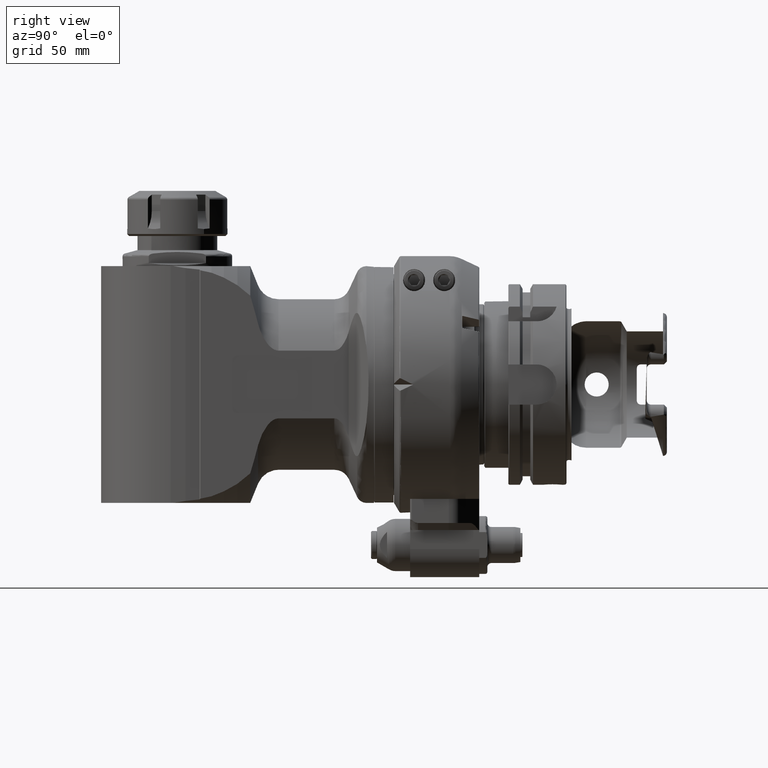
[diagram: clean part render]
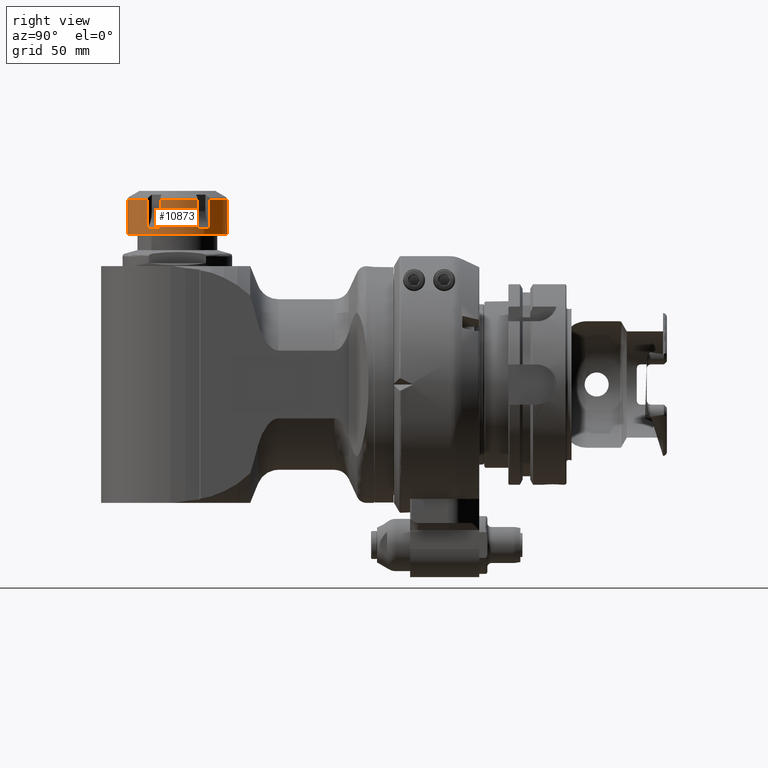
[diagram: same view with one face highlighted and labeled with its STEP entity id]
A machine part, right view. The second image highlights one B-rep face of the part: STEP entity #10873.
In plain terms, the highlighted cylindrical surface (bore or boss wall) has radius 25 mm, axis along (0, -0, 1).
Its self-contained STEP definition (entity closure, byte-faithful):
#280=B_SPLINE_CURVE_WITH_KNOTS('',3,(#23977,#23978,#23979,#23980,#23981,
#23982,#23983,#23984,#23985,#23986),.UNSPECIFIED.,.F.,.F.,(4,2,2,2,4),(1.2833686320491,
1.29546874107736,1.61589836925921,1.93632799744106,1.94842810647175),
 .UNSPECIFIED.);
#281=B_SPLINE_CURVE_WITH_KNOTS('',3,(#23994,#23995,#23996,#23997,#23998,
#23999,#24000,#24001,#24002,#24003),.UNSPECIFIED.,.F.,.F.,(4,2,2,2,4),(1.28336863205176,
1.29546874107993,1.61589836926244,1.93632799744495,1.94842810647282),
 .UNSPECIFIED.);
#282=B_SPLINE_CURVE_WITH_KNOTS('',3,(#24011,#24012,#24013,#24014,#24015,
#24016,#24017,#24018,#24019,#24020),.UNSPECIFIED.,.F.,.F.,(4,2,2,2,4),(1.28336863205147,
1.29546874107986,1.61589836926236,1.93632799744485,1.94842810647336),
 .UNSPECIFIED.);
#283=B_SPLINE_CURVE_WITH_KNOTS('',3,(#24028,#24029,#24030,#24031,#24032,
#24033),.UNSPECIFIED.,.F.,.F.,(4,2,4),(-1.94842810647349,-1.93632799744448,
-1.61589836926205),.UNSPECIFIED.);
#284=B_SPLINE_CURVE_WITH_KNOTS('',3,(#24036,#24037,#24038,#24039,#24040,
#24041),.UNSPECIFIED.,.F.,.F.,(4,2,4),(-1.61589836926205,-1.29546874107962,
-1.28336863205084),.UNSPECIFIED.);
#285=B_SPLINE_CURVE_WITH_KNOTS('',3,(#24049,#24050,#24051,#24052,#24053,
#24054,#24055,#24056,#24057,#24058),.UNSPECIFIED.,.F.,.F.,(4,2,2,2,4),(1.28336863205397,
1.29546874107995,1.61589836926247,1.93632799744499,1.94842810647285),
 .UNSPECIFIED.);
#286=B_SPLINE_CURVE_WITH_KNOTS('',3,(#24066,#24067,#24068,#24069,#24070,
#24071,#24072,#24073,#24074,#24075),.UNSPECIFIED.,.F.,.F.,(4,2,2,2,4),(1.28336863204639,
1.29546874107565,1.61589836925705,1.93632799743846,1.94842810646706),
 .UNSPECIFIED.);
#1096=LINE('',#23988,#1770);
#1097=LINE('',#23992,#1771);
#1098=LINE('',#24005,#1772);
#1099=LINE('',#24009,#1773);
#1100=LINE('',#24022,#1774);
#1101=LINE('',#24026,#1775);
#1102=LINE('',#24034,#1776);
#1103=LINE('',#24043,#1777);
#1104=LINE('',#24047,#1778);
#1105=LINE('',#24060,#1779);
#1106=LINE('',#24064,#1780);
#1107=LINE('',#24077,#1781);
#1108=LINE('',#24080,#1782);
#1770=VECTOR('',#15009,14.29830773003);
#1771=VECTOR('',#15012,14.29830773003);
#1772=VECTOR('',#15013,14.29830773003);
#1773=VECTOR('',#15016,14.29830773003);
#1774=VECTOR('',#15017,14.29830773003);
#1775=VECTOR('',#15020,14.29830773003);
#1776=VECTOR('',#15021,25.);
#1777=VECTOR('',#15022,14.29830773003);
#1778=VECTOR('',#15025,14.29830773003);
#1779=VECTOR('',#15026,14.29830773003);
#1780=VECTOR('',#15029,14.29830773003);
#1781=VECTOR('',#15030,14.29830773003);
#1782=VECTOR('',#15033,14.29830773003);
#2011=CYLINDRICAL_SURFACE('',#12104,25.);
#2935=FACE_OUTER_BOUND('',#3640,.T.);
#3640=EDGE_LOOP('',(#9778,#9779,#9780,#9781,#9782,#9783,#9784,#9785,#9786,
#9787,#9788,#9789,#9790,#9791,#9792,#9793,#9794,#9795,#9796,#9797,#9798,
#9799,#9800,#9801,#9802,#9803,#9804,#9805));
#4275=CIRCLE('',#12103,25.);
#4276=CIRCLE('',#12105,25.);
#4277=CIRCLE('',#12106,25.);
#4278=CIRCLE('',#12107,25.);
#4279=CIRCLE('',#12108,25.);
#4280=CIRCLE('',#12109,25.);
#4281=CIRCLE('',#12110,25.);
#5268=VERTEX_POINT('',#23971);
#5269=VERTEX_POINT('',#23975);
#5270=VERTEX_POINT('',#23976);
#5271=VERTEX_POINT('',#23987);
#5272=VERTEX_POINT('',#23989);
#5273=VERTEX_POINT('',#23991);
#5274=VERTEX_POINT('',#23993);
#5275=VERTEX_POINT('',#24004);
#5276=VERTEX_POINT('',#24006);
#5277=VERTEX_POINT('',#24008);
#5278=VERTEX_POINT('',#24010);
#5279=VERTEX_POINT('',#24021);
#5280=VERTEX_POINT('',#24023);
#5281=VERTEX_POINT('',#24025);
#5282=VERTEX_POINT('',#24027);
#5283=VERTEX_POINT('',#24035);
#5284=VERTEX_POINT('',#24042);
#5285=VERTEX_POINT('',#24044);
#5286=VERTEX_POINT('',#24046);
#5287=VERTEX_POINT('',#24048);
#5288=VERTEX_POINT('',#24059);
#5289=VERTEX_POINT('',#24061);
#5290=VERTEX_POINT('',#24063);
#5291=VERTEX_POINT('',#24065);
#5292=VERTEX_POINT('',#24076);
#5293=VERTEX_POINT('',#24078);
#6801=EDGE_CURVE('',#5268,#5268,#4275,.T.);
#6803=EDGE_CURVE('',#5269,#5270,#280,.T.);
#6804=EDGE_CURVE('',#5269,#5271,#1096,.T.);
#6805=EDGE_CURVE('',#5272,#5271,#4276,.T.);
#6806=EDGE_CURVE('',#5272,#5273,#1097,.T.);
#6807=EDGE_CURVE('',#5274,#5273,#281,.T.);
#6808=EDGE_CURVE('',#5274,#5275,#1098,.T.);
#6809=EDGE_CURVE('',#5276,#5275,#4277,.T.);
#6810=EDGE_CURVE('',#5276,#5277,#1099,.T.);
#6811=EDGE_CURVE('',#5278,#5277,#282,.T.);
#6812=EDGE_CURVE('',#5278,#5279,#1100,.T.);
#6813=EDGE_CURVE('',#5280,#5279,#4278,.T.);
#6814=EDGE_CURVE('',#5280,#5281,#1101,.T.);
#6815=EDGE_CURVE('',#5282,#5281,#283,.F.);
#6816=EDGE_CURVE('',#5282,#5268,#1102,.T.);
#6817=EDGE_CURVE('',#5283,#5282,#284,.F.);
#6818=EDGE_CURVE('',#5283,#5284,#1103,.T.);
#6819=EDGE_CURVE('',#5285,#5284,#4279,.T.);
#6820=EDGE_CURVE('',#5285,#5286,#1104,.T.);
#6821=EDGE_CURVE('',#5287,#5286,#285,.T.);
#6822=EDGE_CURVE('',#5287,#5288,#1105,.T.);
#6823=EDGE_CURVE('',#5289,#5288,#4280,.T.);
#6824=EDGE_CURVE('',#5289,#5290,#1106,.T.);
#6825=EDGE_CURVE('',#5291,#5290,#286,.T.);
#6826=EDGE_CURVE('',#5291,#5292,#1107,.T.);
#6827=EDGE_CURVE('',#5293,#5292,#4281,.T.);
#6828=EDGE_CURVE('',#5293,#5270,#1108,.T.);
#9778=ORIENTED_EDGE('',*,*,#6803,.F.);
#9779=ORIENTED_EDGE('',*,*,#6804,.T.);
#9780=ORIENTED_EDGE('',*,*,#6805,.F.);
#9781=ORIENTED_EDGE('',*,*,#6806,.T.);
#9782=ORIENTED_EDGE('',*,*,#6807,.F.);
#9783=ORIENTED_EDGE('',*,*,#6808,.T.);
#9784=ORIENTED_EDGE('',*,*,#6809,.F.);
#9785=ORIENTED_EDGE('',*,*,#6810,.T.);
#9786=ORIENTED_EDGE('',*,*,#6811,.F.);
#9787=ORIENTED_EDGE('',*,*,#6812,.T.);
#9788=ORIENTED_EDGE('',*,*,#6813,.F.);
#9789=ORIENTED_EDGE('',*,*,#6814,.T.);
#9790=ORIENTED_EDGE('',*,*,#6815,.F.);
#9791=ORIENTED_EDGE('',*,*,#6816,.T.);
#9792=ORIENTED_EDGE('',*,*,#6801,.F.);
#9793=ORIENTED_EDGE('',*,*,#6816,.F.);
#9794=ORIENTED_EDGE('',*,*,#6817,.F.);
#9795=ORIENTED_EDGE('',*,*,#6818,.T.);
#9796=ORIENTED_EDGE('',*,*,#6819,.F.);
#9797=ORIENTED_EDGE('',*,*,#6820,.T.);
#9798=ORIENTED_EDGE('',*,*,#6821,.F.);
#9799=ORIENTED_EDGE('',*,*,#6822,.T.);
#9800=ORIENTED_EDGE('',*,*,#6823,.F.);
#9801=ORIENTED_EDGE('',*,*,#6824,.T.);
#9802=ORIENTED_EDGE('',*,*,#6825,.F.);
#9803=ORIENTED_EDGE('',*,*,#6826,.T.);
#9804=ORIENTED_EDGE('',*,*,#6827,.F.);
#9805=ORIENTED_EDGE('',*,*,#6828,.T.);
#10873=ADVANCED_FACE('',(#2935),#2011,.T.);
#12103=AXIS2_PLACEMENT_3D('',#23972,#15004,#15005);
#12104=AXIS2_PLACEMENT_3D('',#23974,#15007,#15008);
#12105=AXIS2_PLACEMENT_3D('',#23990,#15010,#15011);
#12106=AXIS2_PLACEMENT_3D('',#24007,#15014,#15015);
#12107=AXIS2_PLACEMENT_3D('',#24024,#15018,#15019);
#12108=AXIS2_PLACEMENT_3D('',#24045,#15023,#15024);
#12109=AXIS2_PLACEMENT_3D('',#24062,#15027,#15028);
#12110=AXIS2_PLACEMENT_3D('',#24079,#15031,#15032);
#15004=DIRECTION('center_axis',(0.,1.,0.));
#15005=DIRECTION('ref_axis',(-0.529933890699467,0.,0.848038956350547));
#15007=DIRECTION('center_axis',(0.,-1.,0.));
#15008=DIRECTION('ref_axis',(0.529933890699467,0.,-0.848038956350547));
#15009=DIRECTION('',(-1.888378993423E-14,-1.,3.031345226284E-14));
#15010=DIRECTION('center_axis',(0.,-1.,0.));
#15011=DIRECTION('ref_axis',(-0.34166268719178,0.,-0.939822647195146));
#15012=DIRECTION('',(1.093272048824E-14,1.,0.));
#15013=DIRECTION('',(2.882262674172E-14,-1.,2.186544097647E-14));
#15014=DIRECTION('center_axis',(0.,-1.,0.));
#15015=DIRECTION('ref_axis',(-0.984741631118832,0.,-0.174022756964206));
#15016=DIRECTION('',(0.,1.,-1.192660416899E-14));
#15017=DIRECTION('',(3.379204514546E-14,-1.,0.));
#15018=DIRECTION('center_axis',(0.,-1.,0.));
#15019=DIRECTION('ref_axis',(-0.643078943927024,0.,0.765799890230929));
#15020=DIRECTION('',(-1.391437153049E-14,1.,0.));
#15021=DIRECTION('',(0.,1.,0.));
#15022=DIRECTION('',(-2.087155729573E-14,-1.,-4.720947483558E-14));
#15023=DIRECTION('center_axis',(0.,-1.,0.));
#15024=DIRECTION('ref_axis',(0.341662687191812,0.,0.939822647195134));
#15025=DIRECTION('',(-2.484709201873E-14,1.,1.615060981217E-14));
#15026=DIRECTION('',(-3.279816146471E-14,-1.,-2.559250477928E-14));
#15027=DIRECTION('center_axis',(0.,-1.,0.));
#15028=DIRECTION('ref_axis',(0.984741631118832,0.,0.174022756964206));
#15029=DIRECTION('',(0.,1.,0.));
#15030=DIRECTION('',(-4.174311459145E-14,-1.,0.));
#15031=DIRECTION('center_axis',(0.,-1.,0.));
#15032=DIRECTION('ref_axis',(0.643078943927024,0.,-0.765799890230929));
#15033=DIRECTION('',(0.,1.,0.));
#23971=CARTESIAN_POINT('',(96.75165273251,-75.,21.20097390876));
#23972=CARTESIAN_POINT('Origin',(110.,-75.,6.471299424077E-14));
#23974=CARTESIAN_POINT('Origin',(110.,-83.5,6.518483902624E-14));
#23975=CARTESIAN_POINT('',(120.160516134,-77.83566686619,-22.84215208536));
#23976=CARTESIAN_POINT('',(126.0769735982,-77.83566686619,-19.14499725577));
#23977=CARTESIAN_POINT('Ctrl Pts',(120.160516134002,-77.8356668661983,-22.8421520853594));
#23978=CARTESIAN_POINT('Ctrl Pts',(120.199744558307,-77.8272006773188,-22.8247027208436));
#23979=CARTESIAN_POINT('Ctrl Pts',(120.238964364057,-77.8189000401072,-22.8071361206508));
#23980=CARTESIAN_POINT('Ctrl Pts',(121.316373475687,-77.5953369935485,-22.3212189231742));
#23981=CARTESIAN_POINT('Ctrl Pts',(122.342557909263,-77.5000000000137,-21.7669956406229));
#23982=CARTESIAN_POINT('Ctrl Pts',(124.15413662571,-77.5000000000137,-20.6349521769043));
#23983=CARTESIAN_POINT('Ctrl Pts',(125.102095424081,-77.5953369935485,-19.9555465136752));
#23984=CARTESIAN_POINT('Ctrl Pts',(126.011113919719,-77.8189000401088,-19.2001583411206));
#23985=CARTESIAN_POINT('Ctrl Pts',(126.044094556275,-77.8272006773221,-19.172607366211));
#23986=CARTESIAN_POINT('Ctrl Pts',(126.076973598189,-77.8356668662034,-19.1449972557616));
#23987=CARTESIAN_POINT('',(120.160516134,-92.13397459622,-22.84215208536));
#23988=CARTESIAN_POINT('',(120.160516134,-77.83566686618,-22.84215208536));
#23989=CARTESIAN_POINT('',(101.4584328202,-92.13397459622,-23.49556617988));
#23990=CARTESIAN_POINT('Origin',(110.,-92.13397459622,6.566412089578E-14));
#23991=CARTESIAN_POINT('',(101.4584328202,-77.83566686619,-23.49556617987));
#23992=CARTESIAN_POINT('',(101.4584328202,-92.13397459622,-23.49556617988));
#23993=CARTESIAN_POINT('',(95.29837408397,-77.83566686619,-20.22034113028));
#23994=CARTESIAN_POINT('Ctrl Pts',(95.2983740839662,-77.8356668661823,-20.2203411302827));
#23995=CARTESIAN_POINT('Ctrl Pts',(95.3330998890692,-77.8272006773028,-20.2455892600233));
#23996=CARTESIAN_POINT('Ctrl Pts',(95.367922913969,-77.8189000400913,-20.2707713080377));
#23997=CARTESIAN_POINT('Ctrl Pts',(96.327444106936,-77.5953369935324,-20.9608763702414));
#23998=CARTESIAN_POINT('Ctrl Pts',(97.3205077657842,-77.4999999999975,-21.5724665174122));
#23999=CARTESIAN_POINT('Ctrl Pts',(99.2066755217802,-77.4999999999975,-22.5753179749538));
#24000=CARTESIAN_POINT('Ctrl Pts',(100.269037484799,-77.5953369935324,-23.0565715444699));
#24001=CARTESIAN_POINT('Ctrl Pts',(101.377732079762,-77.8189000400911,-23.4661105679221));
#24002=CARTESIAN_POINT('Ctrl Pts',(101.418082242201,-77.8272006773024,-23.4808971495548));
#24003=CARTESIAN_POINT('Ctrl Pts',(101.458432820199,-77.8356668661817,-23.4955661798764));
#24004=CARTESIAN_POINT('',(95.29837408396,-92.13397459622,-20.22034113028));
#24005=CARTESIAN_POINT('',(95.29837408396,-77.83566686619,-20.22034113028));
#24006=CARTESIAN_POINT('',(85.38145922203,-92.13397459622,-4.350568924106));
#24007=CARTESIAN_POINT('Origin',(110.,-92.13397459622,6.566412089578E-14));
#24008=CARTESIAN_POINT('',(85.38145922203,-77.83566686619,-4.350568924105));
#24009=CARTESIAN_POINT('',(85.38145922203,-92.13397459622,-4.350568924106));
#24010=CARTESIAN_POINT('',(85.13785794997,-77.83566686618,2.621810955082));
#24011=CARTESIAN_POINT('Ctrl Pts',(85.1378579499711,-77.8356668661832,2.62181095508125));
#24012=CARTESIAN_POINT('Ctrl Pts',(85.1333553307691,-77.8272006773036,2.5791134608241));
#24013=CARTESIAN_POINT('Ctrl Pts',(85.1289585499191,-77.8189000400919,2.53636481261629));
#24014=CARTESIAN_POINT('Ctrl Pts',(85.0110706312539,-77.5953369935328,1.36034255293476));
#24015=CARTESIAN_POINT('Ctrl Pts',(84.9779498565238,-77.4999999999979,0.194529123211796));
#24016=CARTESIAN_POINT('Ctrl Pts',(85.0525388960686,-77.4999999999979,-1.94036579805058));
#24017=CARTESIAN_POINT('Ctrl Pts',(85.1669420607152,-77.5953369935329,-3.10102503079719));
#24018=CARTESIAN_POINT('Ctrl Pts',(85.3666181600462,-77.818900040092,-4.26595222680157));
#24019=CARTESIAN_POINT('Ctrl Pts',(85.3739876859373,-77.8272006773037,-4.30828978333963));
#24020=CARTESIAN_POINT('Ctrl Pts',(85.3814592220294,-77.8356668661834,-4.35056892410641));
#24021=CARTESIAN_POINT('',(85.13785794997,-92.13397459622,2.621810955082));
#24022=CARTESIAN_POINT('',(85.13785794997,-77.83566686618,2.621810955082));
#24023=CARTESIAN_POINT('',(93.92302640182,-92.13397459622,19.14499725577));
#24024=CARTESIAN_POINT('Origin',(110.,-92.13397459622,6.566412089578E-14));
#24025=CARTESIAN_POINT('',(93.92302640182,-77.83566686619,19.14499725577));
#24026=CARTESIAN_POINT('',(93.92302640182,-92.13397459622,19.14499725577));
#24027=CARTESIAN_POINT('',(96.7516527325133,-77.4999999999994,21.2009739087637));
#24028=CARTESIAN_POINT('Ctrl Pts',(93.9230264018196,-77.835666866186,19.1449972557693));
#24029=CARTESIAN_POINT('Ctrl Pts',(93.9559054437291,-77.8272006773059,19.1726073662149));
#24030=CARTESIAN_POINT('Ctrl Pts',(93.988886080281,-77.8189000400938,19.2001583411206));
#24031=CARTESIAN_POINT('Ctrl Pts',(94.8979045759158,-77.5953369935343,19.955546513673));
#24032=CARTESIAN_POINT('Ctrl Pts',(95.8458633742879,-77.4999999999994,20.6349521769034));
#24033=CARTESIAN_POINT('Ctrl Pts',(96.7516527325133,-77.4999999999994,21.2009739087638));
#24034=CARTESIAN_POINT('',(96.7516527325133,-83.5,21.2009739087637));
#24035=CARTESIAN_POINT('',(99.83948386601,-77.83566686619,22.84215208536));
#24036=CARTESIAN_POINT('Ctrl Pts',(96.7516527325133,-77.4999999999994,21.2009739087638));
#24037=CARTESIAN_POINT('Ctrl Pts',(97.6574420907387,-77.4999999999994,21.7669956406241));
#24038=CARTESIAN_POINT('Ctrl Pts',(98.6836265243167,-77.5953369935344,22.3212189231762));
#24039=CARTESIAN_POINT('Ctrl Pts',(99.7610356359505,-77.8189000400936,22.8071361206542));
#24040=CARTESIAN_POINT('Ctrl Pts',(99.8002554417021,-77.8272006773056,22.8247027208477));
#24041=CARTESIAN_POINT('Ctrl Pts',(99.839483866009,-77.8356668661855,22.8421520853643));
#24042=CARTESIAN_POINT('',(99.83948386601,-92.13397459622,22.84215208536));
#24043=CARTESIAN_POINT('',(99.83948386601,-77.83566686619,22.84215208536));
#24044=CARTESIAN_POINT('',(118.5415671798,-92.13397459622,23.49556617988));
#24045=CARTESIAN_POINT('Origin',(110.,-92.13397459622,6.566412089578E-14));
#24046=CARTESIAN_POINT('',(118.5415671798,-77.83566686619,23.49556617987));
#24047=CARTESIAN_POINT('',(118.5415671798,-92.13397459622,23.49556617988));
#24048=CARTESIAN_POINT('',(124.701625916,-77.83566686619,20.22034113028));
#24049=CARTESIAN_POINT('Ctrl Pts',(124.701625916015,-77.8356668661776,20.2203411302965));
#24050=CARTESIAN_POINT('Ctrl Pts',(124.666900110918,-77.8272006772997,20.2455892600325));
#24051=CARTESIAN_POINT('Ctrl Pts',(124.632077086025,-77.8189000400897,20.2707713080423));
#24052=CARTESIAN_POINT('Ctrl Pts',(123.672555893064,-77.5953369935323,20.9608763702415));
#24053=CARTESIAN_POINT('Ctrl Pts',(122.679492234216,-77.4999999999974,21.5724665174123));
#24054=CARTESIAN_POINT('Ctrl Pts',(120.79332447822,-77.4999999999974,22.5753179749539));
#24055=CARTESIAN_POINT('Ctrl Pts',(119.730962515201,-77.5953369935323,23.05657154447));
#24056=CARTESIAN_POINT('Ctrl Pts',(118.622267920238,-77.818900040091,23.4661105679223));
#24057=CARTESIAN_POINT('Ctrl Pts',(118.581917757799,-77.8272006773023,23.4808971495549));
#24058=CARTESIAN_POINT('Ctrl Pts',(118.541567179801,-77.8356668661816,23.4955661798765));
#24059=CARTESIAN_POINT('',(124.701625916,-92.13397459622,20.22034113028));
#24060=CARTESIAN_POINT('',(124.701625916,-77.83566686619,20.22034113028));
#24061=CARTESIAN_POINT('',(134.618540778,-92.13397459622,4.350568924106));
#24062=CARTESIAN_POINT('Origin',(110.,-92.13397459622,6.566412089578E-14));
#24063=CARTESIAN_POINT('',(134.618540778,-77.83566686619,4.350568924105));
#24064=CARTESIAN_POINT('',(134.618540778,-92.13397459622,4.350568924106));
#24065=CARTESIAN_POINT('',(134.86214205,-77.83566686618,-2.621810955082));
#24066=CARTESIAN_POINT('Ctrl Pts',(134.862142050029,-77.835666866211,-2.62181095507892));
#24067=CARTESIAN_POINT('Ctrl Pts',(134.866644669231,-77.8272006773307,-2.57911346081871));
#24068=CARTESIAN_POINT('Ctrl Pts',(134.871041450082,-77.8189000401184,-2.53636481260784));
#24069=CARTESIAN_POINT('Ctrl Pts',(134.988929368746,-77.5953369935593,-1.36034255292705));
#24070=CARTESIAN_POINT('Ctrl Pts',(135.022050143476,-77.5000000000246,-0.194529123208044));
#24071=CARTESIAN_POINT('Ctrl Pts',(134.947461103931,-77.5000000000246,1.94036579804709));
#24072=CARTESIAN_POINT('Ctrl Pts',(134.833057939286,-77.5953369935593,3.10102503078979));
#24073=CARTESIAN_POINT('Ctrl Pts',(134.633381839956,-77.818900040118,4.26595222679073));
#24074=CARTESIAN_POINT('Ctrl Pts',(134.626012314065,-77.8272006773298,4.3082897833291));
#24075=CARTESIAN_POINT('Ctrl Pts',(134.618540777972,-77.8356668662096,4.35056892409619));
#24076=CARTESIAN_POINT('',(134.86214205,-92.13397459622,-2.621810955082));
#24077=CARTESIAN_POINT('',(134.86214205,-77.83566686618,-2.621810955082));
#24078=CARTESIAN_POINT('',(126.0769735982,-92.13397459622,-19.14499725577));
#24079=CARTESIAN_POINT('Origin',(110.,-92.13397459622,6.566412089578E-14));
#24080=CARTESIAN_POINT('',(126.0769735982,-92.13397459622,-19.14499725577));